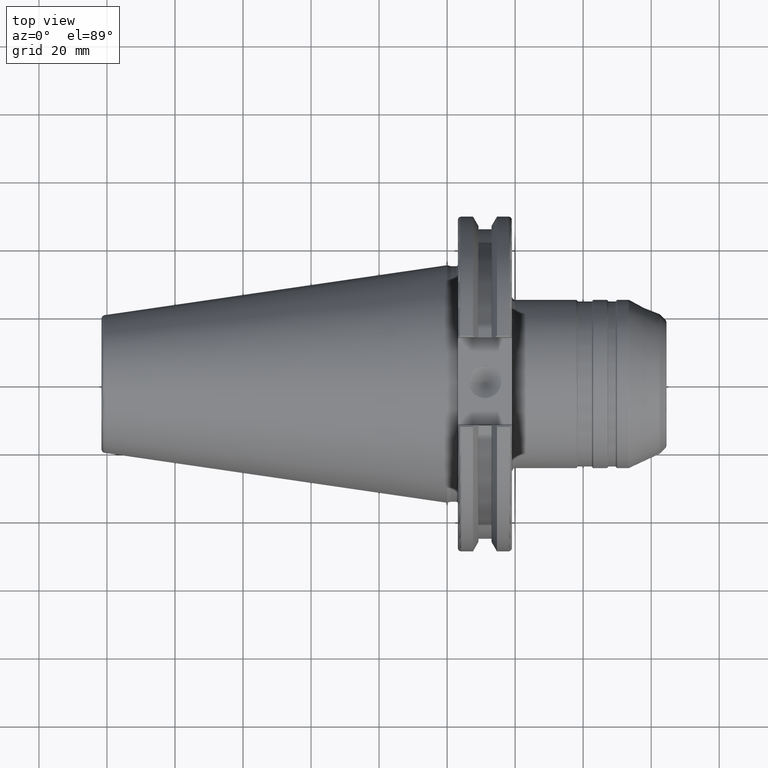
[diagram: clean part render]
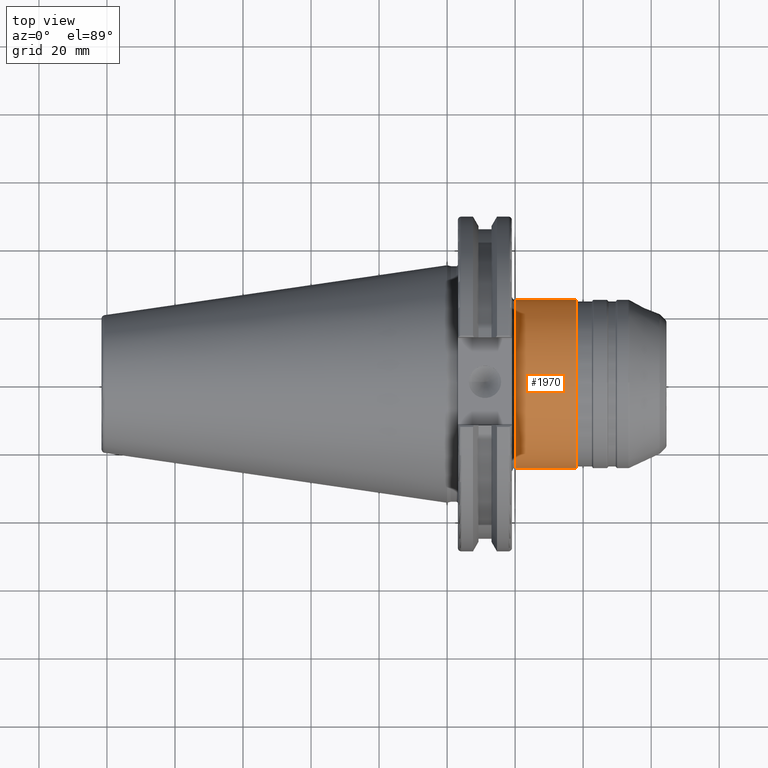
[diagram: same view with one face highlighted and labeled with its STEP entity id]
A machine part, top view. The second image highlights one B-rep face of the part: STEP entity #1970.
In plain terms, the highlighted cylindrical surface (bore or boss wall) has radius 24.75 mm, axis along (1, 0, 0).
Its self-contained STEP definition (entity closure, byte-faithful):
#140=LINE('',#3100,#236);
#236=VECTOR('',#2427,24.75);
#332=CYLINDRICAL_SURFACE('',#2107,24.75);
#366=FACE_OUTER_BOUND('',#468,.T.);
#468=EDGE_LOOP('',(#1328,#1329,#1330,#1331,#1332,#1333,#1334,#1335));
#591=CIRCLE('',#2101,24.75);
#595=CIRCLE('',#2105,24.75);
#596=CIRCLE('',#2106,24.75);
#597=CIRCLE('',#2108,24.75);
#598=CIRCLE('',#2109,24.75);
#599=CIRCLE('',#2110,24.75);
#760=VERTEX_POINT('',#3083);
#761=VERTEX_POINT('',#3084);
#764=VERTEX_POINT('',#3091);
#765=VERTEX_POINT('',#3095);
#766=VERTEX_POINT('',#3096);
#767=VERTEX_POINT('',#3098);
#992=EDGE_CURVE('',#760,#761,#591,.T.);
#996=EDGE_CURVE('',#761,#764,#595,.T.);
#997=EDGE_CURVE('',#764,#760,#596,.T.);
#998=EDGE_CURVE('',#765,#766,#597,.T.);
#999=EDGE_CURVE('',#767,#765,#598,.T.);
#1000=EDGE_CURVE('',#767,#764,#140,.T.);
#1001=EDGE_CURVE('',#766,#767,#599,.T.);
#1328=ORIENTED_EDGE('',*,*,#998,.F.);
#1329=ORIENTED_EDGE('',*,*,#999,.F.);
#1330=ORIENTED_EDGE('',*,*,#1000,.T.);
#1331=ORIENTED_EDGE('',*,*,#996,.F.);
#1332=ORIENTED_EDGE('',*,*,#992,.F.);
#1333=ORIENTED_EDGE('',*,*,#997,.F.);
#1334=ORIENTED_EDGE('',*,*,#1000,.F.);
#1335=ORIENTED_EDGE('',*,*,#1001,.F.);
#1970=ADVANCED_FACE('',(#366),#332,.T.);
#2101=AXIS2_PLACEMENT_3D('',#3085,#2409,#2410);
#2105=AXIS2_PLACEMENT_3D('',#3092,#2417,#2418);
#2106=AXIS2_PLACEMENT_3D('',#3093,#2419,#2420);
#2107=AXIS2_PLACEMENT_3D('',#3094,#2421,#2422);
#2108=AXIS2_PLACEMENT_3D('',#3097,#2423,#2424);
#2109=AXIS2_PLACEMENT_3D('',#3099,#2425,#2426);
#2110=AXIS2_PLACEMENT_3D('',#3101,#2428,#2429);
#2409=DIRECTION('center_axis',(-1.,0.,0.));
#2410=DIRECTION('ref_axis',(0.,-1.,-1.22464679914735E-16));
#2417=DIRECTION('center_axis',(-1.,0.,0.));
#2418=DIRECTION('ref_axis',(0.,-1.,-1.22464679914735E-16));
#2419=DIRECTION('center_axis',(-1.,0.,0.));
#2420=DIRECTION('ref_axis',(0.,-1.,-1.22464679914735E-16));
#2421=DIRECTION('center_axis',(1.,0.,0.));
#2422=DIRECTION('ref_axis',(0.,1.,0.));
#2423=DIRECTION('center_axis',(1.,0.,0.));
#2424=DIRECTION('ref_axis',(0.,0.,-1.));
#2425=DIRECTION('center_axis',(1.,0.,0.));
#2426=DIRECTION('ref_axis',(0.,0.,-1.));
#2427=DIRECTION('',(-1.,0.,0.));
#2428=DIRECTION('center_axis',(1.,0.,0.));
#2429=DIRECTION('ref_axis',(0.,0.,-1.));
#3083=CARTESIAN_POINT('',(20.05,24.75,0.));
#3084=CARTESIAN_POINT('',(20.05,-3.0310008278897E-15,-24.75));
#3085=CARTESIAN_POINT('Origin',(20.05,0.,0.));
#3091=CARTESIAN_POINT('',(20.05,-24.75,-3.0310008278897E-15));
#3092=CARTESIAN_POINT('Origin',(20.05,0.,0.));
#3093=CARTESIAN_POINT('Origin',(20.05,0.,0.));
#3094=CARTESIAN_POINT('Origin',(28.4574573519458,0.,0.));
#3095=CARTESIAN_POINT('',(37.8649147038919,24.75,0.));
#3096=CARTESIAN_POINT('',(37.8649147038919,-3.0310008278897E-15,24.75));
#3097=CARTESIAN_POINT('Origin',(37.8649147038919,0.,0.));
#3098=CARTESIAN_POINT('',(37.8649147038919,-24.75,-3.0310008278897E-15));
#3099=CARTESIAN_POINT('Origin',(37.8649147038919,0.,0.));
#3100=CARTESIAN_POINT('',(28.4574573519458,-24.75,-3.0310008278897E-15));
#3101=CARTESIAN_POINT('Origin',(37.8649147038919,0.,0.));